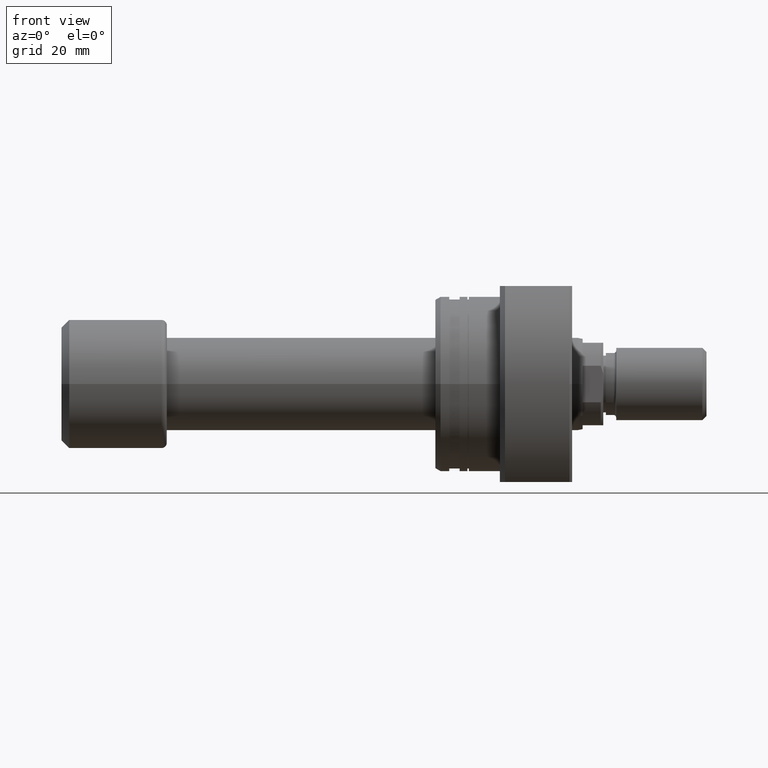
[diagram: clean part render]
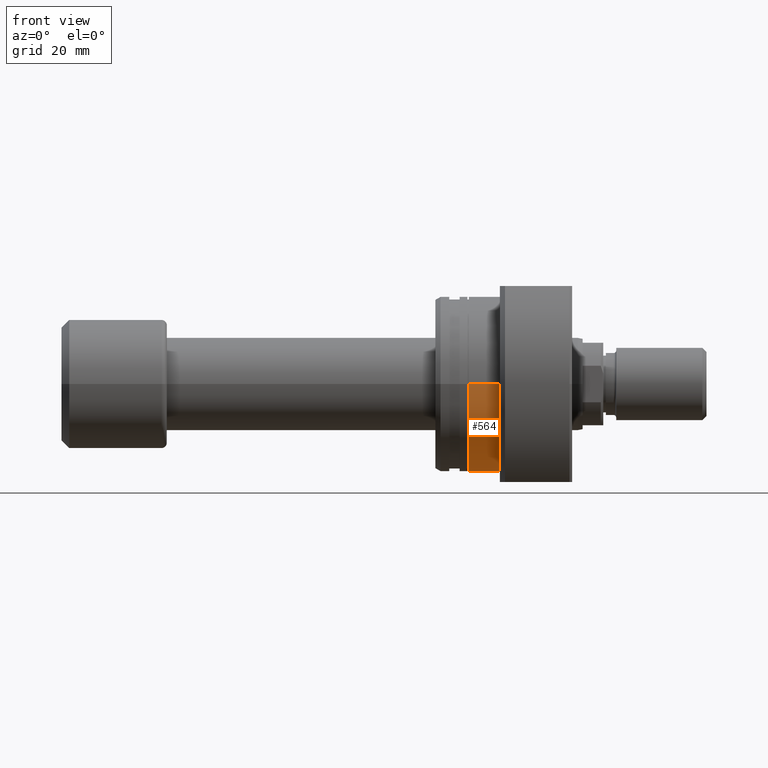
[diagram: same view with one face highlighted and labeled with its STEP entity id]
A machine part, front view. The second image highlights one B-rep face of the part: STEP entity #564.
In plain terms, the highlighted cylindrical surface (partial cylindrical patch) has radius 17 mm, axis along (1, 0, 0).
Its self-contained STEP definition (entity closure, byte-faithful):
#83 = CIRCLE ( 'NONE', #3363, 16.99999999999999645 ) ;
#198 = EDGE_CURVE ( 'NONE', #411, #709, #2155, .T. ) ;
#322 = VECTOR ( 'NONE', #798, 1000.000000000000000 ) ;
#374 = ORIENTED_EDGE ( 'NONE', *, *, #198, .T. ) ;
#411 = VERTEX_POINT ( 'NONE', #523 ) ;
#482 = DIRECTION ( 'NONE',  ( 1.000000000000000000, 9.242617352055502386E-18, -0.000000000000000000 ) ) ;
#523 = CARTESIAN_POINT ( 'NONE',  ( 6.499999999999783284, 16.99999999999999645, 0.000000000000000000 ) ) ;
#542 = DIRECTION ( 'NONE',  ( 0.000000000000000000, 1.000000000000000000, 0.000000000000000000 ) ) ;
#564 = ADVANCED_FACE ( 'NONE', ( #1733 ), #2890, .T. ) ;
#709 = VERTEX_POINT ( 'NONE', #3290 ) ;
#760 = CARTESIAN_POINT ( 'NONE',  ( 12.50000000000000178, -16.99999999999999645, 2.081899558550499885E-15 ) ) ;
#798 = DIRECTION ( 'NONE',  ( 1.000000000000000000, 9.242617352055502386E-18, -0.000000000000000000 ) ) ;
#830 = ORIENTED_EDGE ( 'NONE', *, *, #2599, .F. ) ;
#877 = DIRECTION ( 'NONE',  ( 0.000000000000000000, 1.000000000000000000, 0.000000000000000000 ) ) ;
#1014 = VERTEX_POINT ( 'NONE', #760 ) ;
#1098 = DIRECTION ( 'NONE',  ( 1.000000000000000000, 9.242617352055502386E-18, -0.000000000000000000 ) ) ;
#1283 = CIRCLE ( 'NONE', #3060, 16.99999999999999645 ) ;
#1307 = CARTESIAN_POINT ( 'NONE',  ( 6.499999999999783284, 6.007701278835876331E-17, 0.000000000000000000 ) ) ;
#1338 = ORIENTED_EDGE ( 'NONE', *, *, #2547, .F. ) ;
#1569 = CARTESIAN_POINT ( 'NONE',  ( 26.50000000000000711, 16.99999999999999645, 0.000000000000000000 ) ) ;
#1614 = DIRECTION ( 'NONE',  ( 0.000000000000000000, 1.000000000000000000, 0.000000000000000000 ) ) ;
#1616 = VECTOR ( 'NONE', #3573, 1000.000000000000000 ) ;
#1618 = AXIS2_PLACEMENT_3D ( 'NONE', #2807, #1098, #542 ) ;
#1644 = CARTESIAN_POINT ( 'NONE',  ( 6.499999999999783284, -16.99999999999999645, 2.081899558550499885E-15 ) ) ;
#1733 = FACE_OUTER_BOUND ( 'NONE', #2795, .T. ) ;
#1781 = VERTEX_POINT ( 'NONE', #1644 ) ;
#2155 = LINE ( 'NONE', #1569, #1616 ) ;
#2532 = CARTESIAN_POINT ( 'NONE',  ( 12.50000000000000178, 1.155327169006937960E-16, 0.000000000000000000 ) ) ;
#2547 = EDGE_CURVE ( 'NONE', #1014, #709, #1283, .T. ) ;
#2599 = EDGE_CURVE ( 'NONE', #1781, #1014, #3347, .T. ) ;
#2795 = EDGE_LOOP ( 'NONE', ( #830, #3648, #374, #1338 ) ) ;
#2807 = CARTESIAN_POINT ( 'NONE',  ( 26.50000000000000711, 2.449293598294708880E-16, 0.000000000000000000 ) ) ;
#2889 = EDGE_CURVE ( 'NONE', #1781, #411, #83, .T. ) ;
#2890 = CYLINDRICAL_SURFACE ( 'NONE', #1618, 16.99999999999999645 ) ;
#3060 = AXIS2_PLACEMENT_3D ( 'NONE', #2532, #3104, #877 ) ;
#3104 = DIRECTION ( 'NONE',  ( 1.000000000000000000, 9.242617352055502386E-18, -0.000000000000000000 ) ) ;
#3290 = CARTESIAN_POINT ( 'NONE',  ( 12.50000000000000178, 16.99999999999999645, 0.000000000000000000 ) ) ;
#3347 = LINE ( 'NONE', #3412, #322 ) ;
#3363 = AXIS2_PLACEMENT_3D ( 'NONE', #1307, #482, #1614 ) ;
#3412 = CARTESIAN_POINT ( 'NONE',  ( 26.50000000000000711, -16.99999999999999645, 2.081899558550499885E-15 ) ) ;
#3573 = DIRECTION ( 'NONE',  ( 1.000000000000000000, 9.242617352055502386E-18, -0.000000000000000000 ) ) ;
#3648 = ORIENTED_EDGE ( 'NONE', *, *, #2889, .T. ) ;